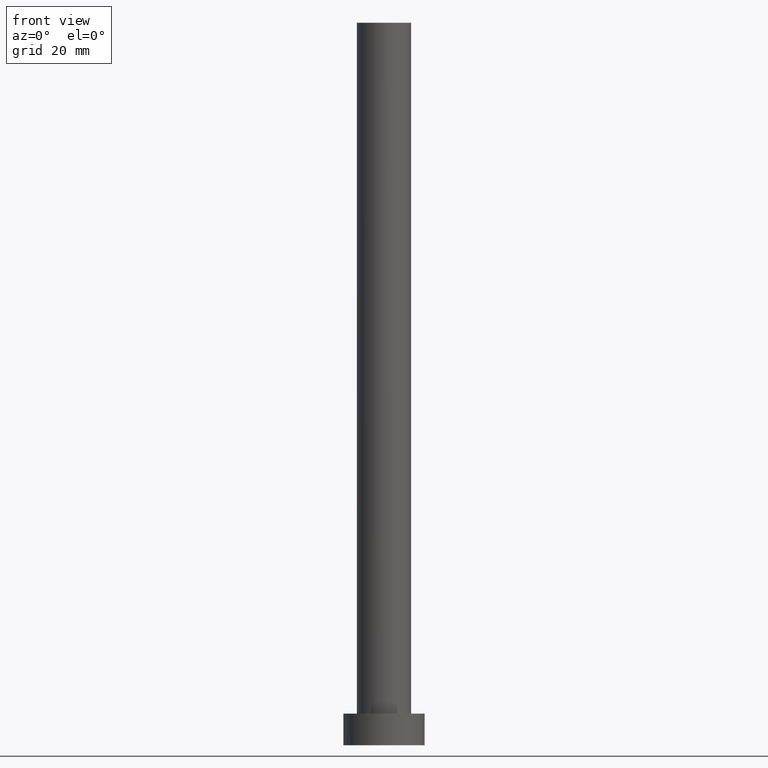
[diagram: clean part render]
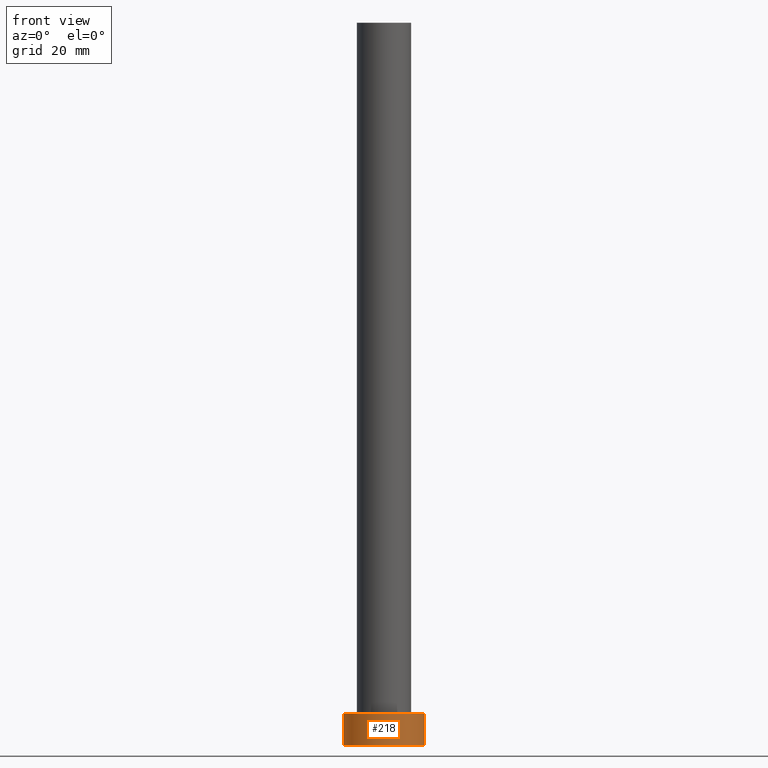
[diagram: same view with one face highlighted and labeled with its STEP entity id]
A machine part, front view. The second image highlights one B-rep face of the part: STEP entity #218.
In plain terms, the highlighted cylindrical surface (partial cylindrical patch) has radius 9 mm, axis along (-0, -0, -1).
Its self-contained STEP definition (entity closure, byte-faithful):
#3 = AXIS2_PLACEMENT_3D ( 'NONE', #40, #112, #200 ) ;
#4 = EDGE_CURVE ( 'NONE', #146, #243, #5, .T. ) ;
#5 = CIRCLE ( 'NONE', #198, 9.000000000000000000 ) ;
#11 = CARTESIAN_POINT ( 'NONE',  ( 9.000000000000000000, 1.102182119232617714E-15, 7.000000000000000000 ) ) ;
#23 = CARTESIAN_POINT ( 'NONE',  ( -9.000000000000000000, 0.000000000000000000, 7.000000000000000000 ) ) ;
#26 = DIRECTION ( 'NONE',  ( -0.000000000000000000, -0.000000000000000000, -1.000000000000000000 ) ) ;
#37 = CARTESIAN_POINT ( 'NONE',  ( 9.000000000000000000, 1.102182119232617714E-15, 7.000000000000000000 ) ) ;
#39 = ORIENTED_EDGE ( 'NONE', *, *, #205, .T. ) ;
#40 = CARTESIAN_POINT ( 'NONE',  ( 0.000000000000000000, 0.000000000000000000, 7.000000000000000000 ) ) ;
#46 = LINE ( 'NONE', #23, #125 ) ;
#60 = CARTESIAN_POINT ( 'NONE',  ( 0.000000000000000000, 0.000000000000000000, 7.000000000000000000 ) ) ;
#64 = DIRECTION ( 'NONE',  ( 1.000000000000000000, 0.000000000000000000, 0.000000000000000000 ) ) ;
#69 = CARTESIAN_POINT ( 'NONE',  ( 0.000000000000000000, 0.000000000000000000, 0.000000000000000000 ) ) ;
#71 = CARTESIAN_POINT ( 'NONE',  ( 9.000000000000000000, 1.102182119232617714E-15, 0.000000000000000000 ) ) ;
#76 = CARTESIAN_POINT ( 'NONE',  ( -9.000000000000000000, 0.000000000000000000, 0.000000000000000000 ) ) ;
#84 = EDGE_LOOP ( 'NONE', ( #145, #169, #39, #182 ) ) ;
#104 = VERTEX_POINT ( 'NONE', #227 ) ;
#112 = DIRECTION ( 'NONE',  ( -0.000000000000000000, -0.000000000000000000, -1.000000000000000000 ) ) ;
#125 = VECTOR ( 'NONE', #158, 1000.000000000000000 ) ;
#126 = DIRECTION ( 'NONE',  ( 1.000000000000000000, 0.000000000000000000, 0.000000000000000000 ) ) ;
#145 = ORIENTED_EDGE ( 'NONE', *, *, #160, .F. ) ;
#146 = VERTEX_POINT ( 'NONE', #76 ) ;
#158 = DIRECTION ( 'NONE',  ( -0.000000000000000000, -0.000000000000000000, -1.000000000000000000 ) ) ;
#160 = EDGE_CURVE ( 'NONE', #191, #243, #173, .T. ) ;
#163 = DIRECTION ( 'NONE',  ( 0.000000000000000000, 0.000000000000000000, 1.000000000000000000 ) ) ;
#169 = ORIENTED_EDGE ( 'NONE', *, *, #204, .F. ) ;
#171 = VECTOR ( 'NONE', #26, 1000.000000000000000 ) ;
#173 = LINE ( 'NONE', #37, #171 ) ;
#182 = ORIENTED_EDGE ( 'NONE', *, *, #4, .T. ) ;
#191 = VERTEX_POINT ( 'NONE', #11 ) ;
#198 = AXIS2_PLACEMENT_3D ( 'NONE', #69, #250, #126 ) ;
#199 = CIRCLE ( 'NONE', #248, 9.000000000000000000 ) ;
#200 = DIRECTION ( 'NONE',  ( -1.000000000000000000, 0.000000000000000000, 0.000000000000000000 ) ) ;
#204 = EDGE_CURVE ( 'NONE', #104, #191, #199, .T. ) ;
#205 = EDGE_CURVE ( 'NONE', #104, #146, #46, .T. ) ;
#218 = ADVANCED_FACE ( 'NONE', ( #240 ), #221, .T. ) ;
#221 = CYLINDRICAL_SURFACE ( 'NONE', #3, 9.000000000000000000 ) ;
#227 = CARTESIAN_POINT ( 'NONE',  ( -9.000000000000000000, 0.000000000000000000, 7.000000000000000000 ) ) ;
#240 = FACE_OUTER_BOUND ( 'NONE', #84, .T. ) ;
#243 = VERTEX_POINT ( 'NONE', #71 ) ;
#248 = AXIS2_PLACEMENT_3D ( 'NONE', #60, #163, #64 ) ;
#250 = DIRECTION ( 'NONE',  ( 0.000000000000000000, 0.000000000000000000, 1.000000000000000000 ) ) ;